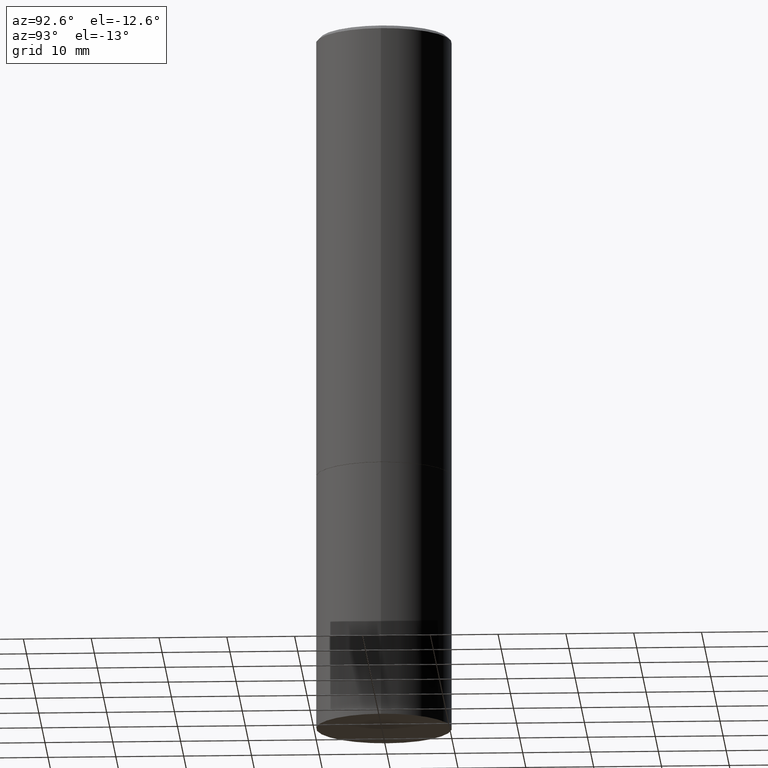
[diagram: clean part render]
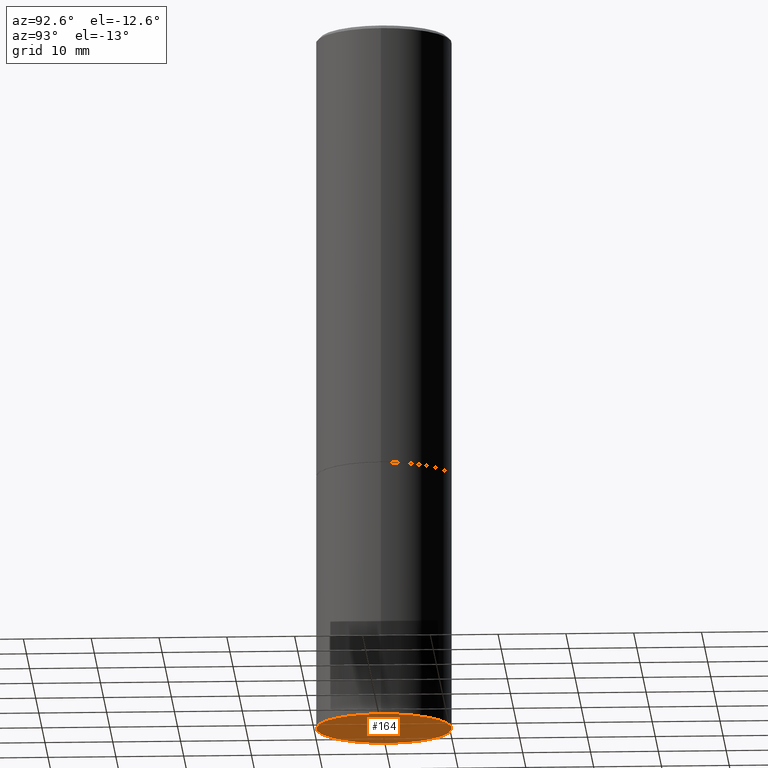
[diagram: same view with one face highlighted and labeled with its STEP entity id]
A machine part, auxiliary view. The second image highlights one B-rep face of the part: STEP entity #164.
In plain terms, the highlighted planar face has unit normal (0, -0, -1).
Its self-contained STEP definition (entity closure, byte-faithful):
#1 = FACE_OUTER_BOUND ( 'NONE', #214, .T. ) ;
#14 = EDGE_CURVE ( 'NONE', #320, #329, #333, .T. ) ;
#19 = CARTESIAN_POINT ( 'NONE',  ( -0.3937000000000000499, -8.886660975684131482E-15, -4.094500000000000028 ) ) ;
#27 = ORIENTED_EDGE ( 'NONE', *, *, #75, .F. ) ;
#38 = DIRECTION ( 'NONE',  ( -1.000000000000000000, 6.982962677686265922E-15, -4.876176775795935793E-29 ) ) ;
#72 = PLANE ( 'NONE',  #179 ) ;
#75 = EDGE_CURVE ( 'NONE', #329, #320, #324, .T. ) ;
#100 = DIRECTION ( 'NONE',  ( 2.438088387897960049E-29, -3.491481338843145188E-15, -1.000000000000000000 ) ) ;
#108 = CARTESIAN_POINT ( 'NONE',  ( 1.001297202692504215E-28, -1.429587034189326149E-14, -4.094500000000000028 ) ) ;
#140 = DIRECTION ( 'NONE',  ( 1.000000000000000000, -6.982962677686267499E-15, 0.000000000000000000 ) ) ;
#157 = CARTESIAN_POINT ( 'NONE',  ( 1.001297202692504215E-28, -1.429587034189326149E-14, -4.094500000000000028 ) ) ;
#164 = ADVANCED_FACE ( 'NONE', ( #1 ), #72, .T. ) ;
#170 = DIRECTION ( 'NONE',  ( -2.445468806185136597E-29, 3.491481338843145583E-15, 1.000000000000000000 ) ) ;
#179 = AXIS2_PLACEMENT_3D ( 'NONE', #255, #100, #38 ) ;
#189 = AXIS2_PLACEMENT_3D ( 'NONE', #157, #210, #254 ) ;
#210 = DIRECTION ( 'NONE',  ( -2.445468806185136597E-29, 3.491481338843145583E-15, 1.000000000000000000 ) ) ;
#214 = EDGE_LOOP ( 'NONE', ( #289, #27 ) ) ;
#240 = CARTESIAN_POINT ( 'NONE',  ( 0.3937000000000000499, -1.704506274809834471E-14, -4.094500000000000028 ) ) ;
#254 = DIRECTION ( 'NONE',  ( 1.000000000000000000, -6.982962677686267499E-15, 0.000000000000000000 ) ) ;
#255 = CARTESIAN_POINT ( 'NONE',  ( 2.749192406205183007E-15, 0.3936999999999857280, -4.094500000000001805 ) ) ;
#263 = AXIS2_PLACEMENT_3D ( 'NONE', #108, #170, #140 ) ;
#289 = ORIENTED_EDGE ( 'NONE', *, *, #14, .F. ) ;
#320 = VERTEX_POINT ( 'NONE', #240 ) ;
#324 = CIRCLE ( 'NONE', #263, 0.3937000000000000499 ) ;
#329 = VERTEX_POINT ( 'NONE', #19 ) ;
#333 = CIRCLE ( 'NONE', #189, 0.3937000000000000499 ) ;